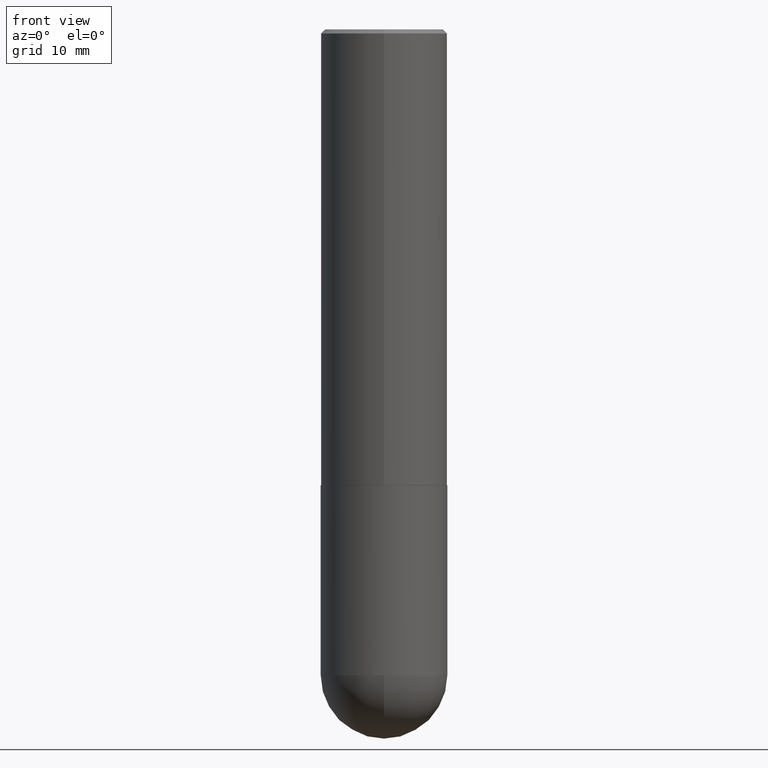
[diagram: clean part render]
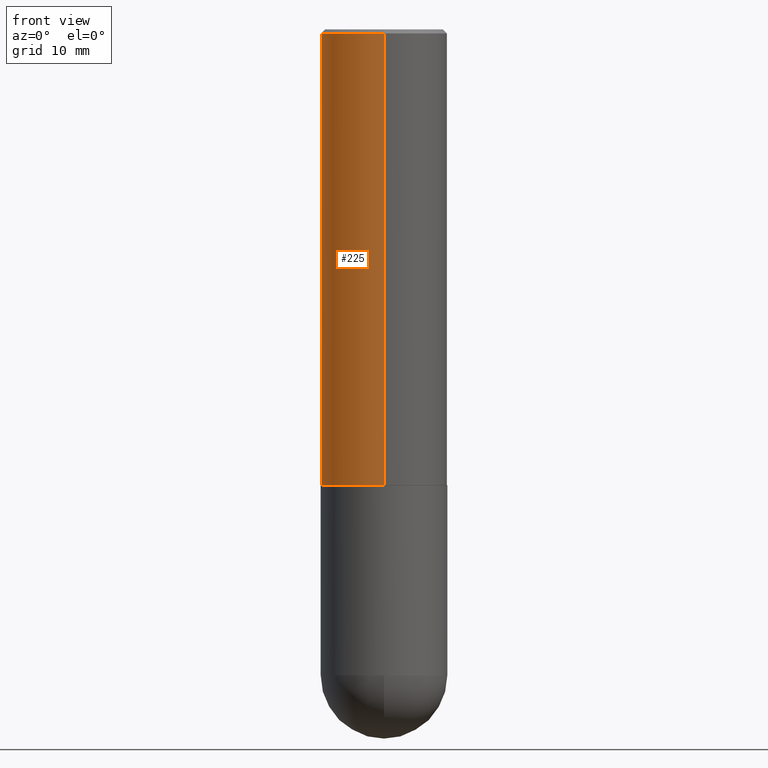
[diagram: same view with one face highlighted and labeled with its STEP entity id]
A machine part, front view. The second image highlights one B-rep face of the part: STEP entity #225.
In plain terms, the highlighted cylindrical surface (partial cylindrical patch) has radius 7.9375 mm, axis along (-0, 0, 1).
Its self-contained STEP definition (entity closure, byte-faithful):
#3 = DIRECTION ( 'NONE',  ( -2.444858820347609683E-29, 3.492354873280721784E-15, 1.000000000000000000 ) ) ;
#6 = EDGE_CURVE ( 'NONE', #59, #361, #402, .T. ) ;
#12 = ORIENTED_EDGE ( 'NONE', *, *, #293, .F. ) ;
#13 = EDGE_CURVE ( 'NONE', #192, #203, #39, .T. ) ;
#25 = CARTESIAN_POINT ( 'NONE',  ( 2.220446049250313475E-15, 0.3125000000000001665, -1.091360897900225903E-15 ) ) ;
#26 = DIRECTION ( 'NONE',  ( -2.444858820347609963E-29, 3.492354873280721389E-15, 1.000000000000000000 ) ) ;
#39 = CIRCLE ( 'NONE', #175, 0.3125000000000002776 ) ;
#42 = ORIENTED_EDGE ( 'NONE', *, *, #13, .T. ) ;
#55 = DIRECTION ( 'NONE',  ( -6.982962677686265133E-15, -1.000000000000000000, 3.496765431890256920E-15 ) ) ;
#58 = CARTESIAN_POINT ( 'NONE',  ( -2.182175836776959136E-15, -0.3125000000000001665, 1.091360897900225903E-15 ) ) ;
#59 = VERTEX_POINT ( 'NONE', #281 ) ;
#60 = LINE ( 'NONE', #25, #149 ) ;
#75 = EDGE_CURVE ( 'NONE', #203, #361, #123, .T. ) ;
#81 = CARTESIAN_POINT ( 'NONE',  ( 4.889717640695238389E-31, -6.984709746561468318E-17, -0.02000000000000007327 ) ) ;
#82 = DIRECTION ( 'NONE',  ( -6.982962677686265133E-15, -1.000000000000000000, 3.492354873280720995E-15 ) ) ;
#90 = ORIENTED_EDGE ( 'NONE', *, *, #75, .T. ) ;
#110 = ORIENTED_EDGE ( 'NONE', *, *, #6, .F. ) ;
#112 = CARTESIAN_POINT ( 'NONE',  ( 0.000000000000000000, 0.000000000000000000, 0.000000000000000000 ) ) ;
#116 = AXIS2_PLACEMENT_3D ( 'NONE', #112, #365, #82 ) ;
#117 = DIRECTION ( 'NONE',  ( -2.444858820347609963E-29, 3.492354873280721389E-15, 1.000000000000000000 ) ) ;
#123 = LINE ( 'NONE', #58, #215 ) ;
#149 = VECTOR ( 'NONE', #183, 39.37007874015748143 ) ;
#175 = AXIS2_PLACEMENT_3D ( 'NONE', #338, #117, #179 ) ;
#179 = DIRECTION ( 'NONE',  ( -6.982962677686265922E-15, -1.000000000000000000, 3.496765431890253764E-15 ) ) ;
#183 = DIRECTION ( 'NONE',  ( -2.444858820347609683E-29, 3.492354873280721784E-15, 1.000000000000000000 ) ) ;
#192 = VERTEX_POINT ( 'NONE', #231 ) ;
#203 = VERTEX_POINT ( 'NONE', #388 ) ;
#214 = AXIS2_PLACEMENT_3D ( 'NONE', #81, #26, #55 ) ;
#215 = VECTOR ( 'NONE', #3, 39.37007874015748143 ) ;
#225 = ADVANCED_FACE ( 'NONE', ( #270 ), #400, .T. ) ;
#231 = CARTESIAN_POINT ( 'NONE',  ( 2.220446049250341874E-15, 0.3124999999999924505, -2.249000000000000998 ) ) ;
#270 = FACE_OUTER_BOUND ( 'NONE', #316, .T. ) ;
#281 = CARTESIAN_POINT ( 'NONE',  ( 2.182175836776958741E-15, 0.3124999999999999445, -0.02000000000000116615 ) ) ;
#293 = EDGE_CURVE ( 'NONE', #192, #59, #60, .T. ) ;
#316 = EDGE_LOOP ( 'NONE', ( #12, #42, #90, #110 ) ) ;
#338 = CARTESIAN_POINT ( 'NONE',  ( 5.498487486961774276E-29, -7.854306110008341744E-15, -2.248999999999999666 ) ) ;
#350 = CARTESIAN_POINT ( 'NONE',  ( -2.143905624303602824E-15, -0.3125000000000000555, -0.01999999999999898040 ) ) ;
#361 = VERTEX_POINT ( 'NONE', #350 ) ;
#365 = DIRECTION ( 'NONE',  ( -2.444858820347609963E-29, 3.492354873280721389E-15, 1.000000000000000000 ) ) ;
#388 = CARTESIAN_POINT ( 'NONE',  ( -2.182175836776905099E-15, -0.3125000000000081601, -2.248999999999998778 ) ) ;
#400 = CYLINDRICAL_SURFACE ( 'NONE', #116, 0.3125000000000001665 ) ;
#402 = CIRCLE ( 'NONE', #214, 0.3125000000000000000 ) ;